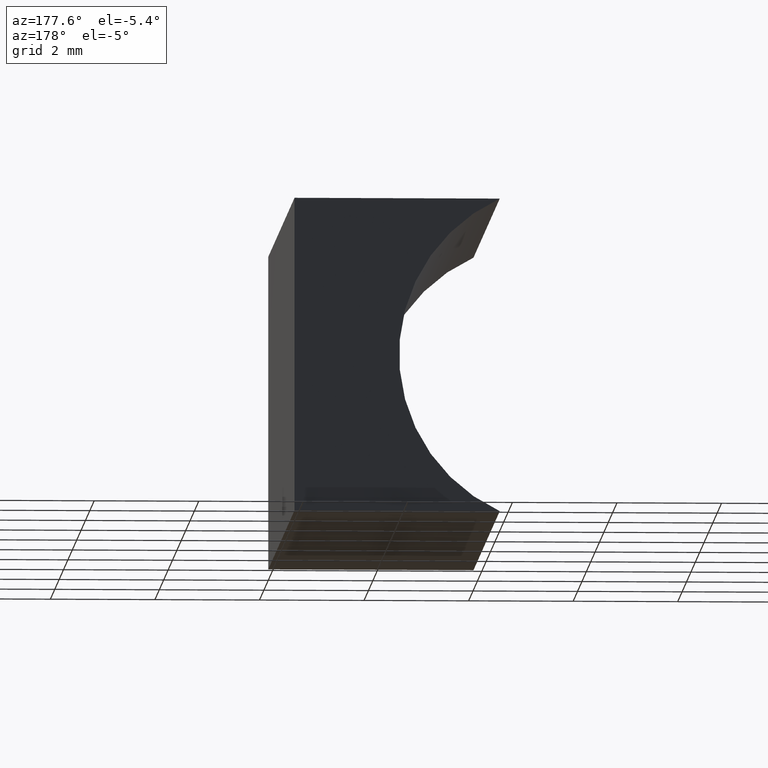
[diagram: clean part render]
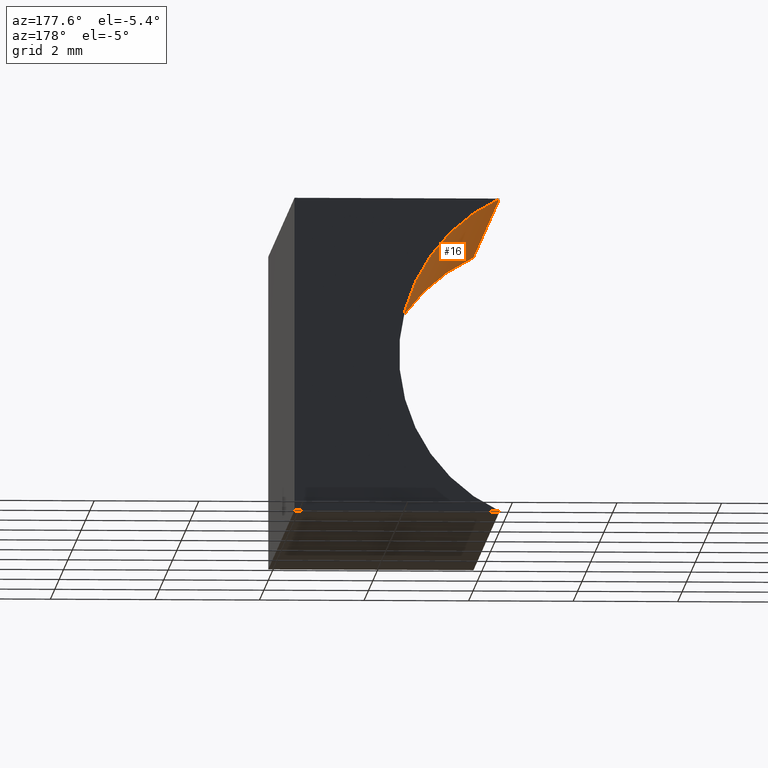
[diagram: same view with one face highlighted and labeled with its STEP entity id]
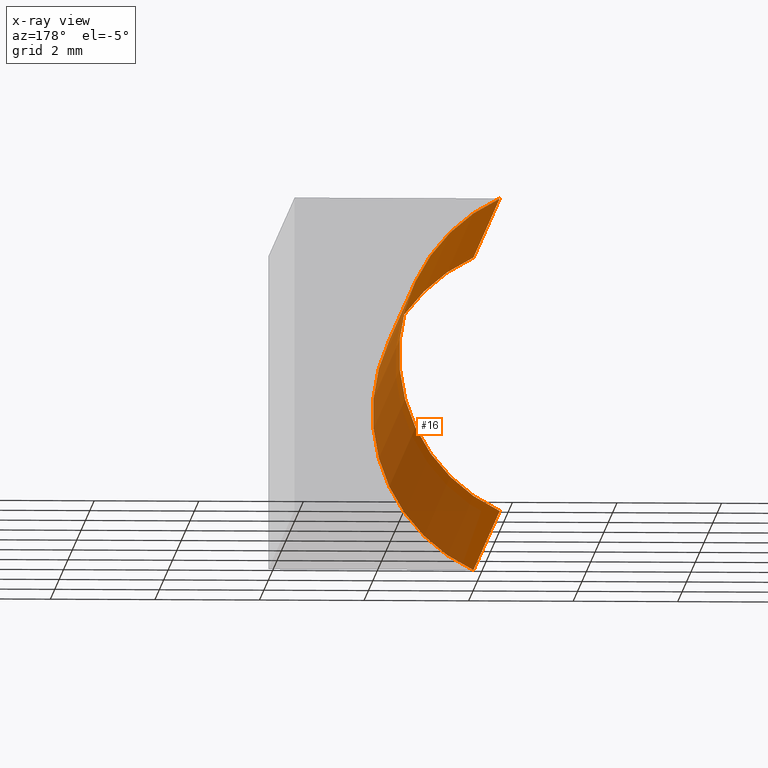
[diagram: x-ray of the same camera — body ghosted, the highlighted face saturated]
A machine part, auxiliary view. The second image highlights one B-rep face of the part: STEP entity #16.
The next image is the same camera in x-ray: the body ghosted, the highlighted face saturated — about 63% of this face is hidden behind the body in this view.
In plain terms, the highlighted cylindrical surface (partial cylindrical patch) has radius 3.3 mm, axis along (-0, -1, -0).
Its self-contained STEP definition (entity closure, byte-faithful):
#2 = CARTESIAN_POINT ( 'NONE',  ( -3.925227291513251800, 0.0000000000000000000, 5.999999999999998200 ) ) ;
#10 = DIRECTION ( 'NONE',  ( -0.0000000000000000000, -1.000000000000000000, -0.0000000000000000000 ) ) ;
#14 = CARTESIAN_POINT ( 'NONE',  ( -5.299999999999998900, 12.00000000000000000, 2.999999999999998200 ) ) ;
#15 = VERTEX_POINT ( 'NONE', #170 ) ;
#16 = ADVANCED_FACE ( 'NONE', ( #42 ), #137, .F. ) ;
#18 = AXIS2_PLACEMENT_3D ( 'NONE', #14, #144, #102 ) ;
#21 = VERTEX_POINT ( 'NONE', #2 ) ;
#29 = VERTEX_POINT ( 'NONE', #200 ) ;
#42 = FACE_OUTER_BOUND ( 'NONE', #196, .T. ) ;
#44 = DIRECTION ( 'NONE',  ( -0.0000000000000000000, -1.000000000000000000, -0.0000000000000000000 ) ) ;
#51 = CARTESIAN_POINT ( 'NONE',  ( -3.925227291513245600, 12.00000000000000000, 4.336808689942017700E-016 ) ) ;
#53 = EDGE_CURVE ( 'NONE', #61, #21, #109, .T. ) ;
#58 = CARTESIAN_POINT ( 'NONE',  ( -5.299999999999998900, 0.0000000000000000000, 2.999999999999998200 ) ) ;
#61 = VERTEX_POINT ( 'NONE', #202 ) ;
#63 = DIRECTION ( 'NONE',  ( -0.0000000000000000000, -1.000000000000000000, -0.0000000000000000000 ) ) ;
#77 = AXIS2_PLACEMENT_3D ( 'NONE', #58, #63, #134 ) ;
#82 = ORIENTED_EDGE ( 'NONE', *, *, #131, .F. ) ;
#91 = DIRECTION ( 'NONE',  ( 0.0000000000000000000, 0.0000000000000000000, 1.000000000000000000 ) ) ;
#95 = DIRECTION ( 'NONE',  ( -0.0000000000000000000, -1.000000000000000000, -0.0000000000000000000 ) ) ;
#98 = CARTESIAN_POINT ( 'NONE',  ( -5.299999999999998900, 12.00000000000000000, 2.999999999999998200 ) ) ;
#100 = CARTESIAN_POINT ( 'NONE',  ( -3.925227291513251800, 12.00000000000000000, 5.999999999999998200 ) ) ;
#102 = DIRECTION ( 'NONE',  ( 0.0000000000000000000, 0.0000000000000000000, -1.000000000000000000 ) ) ;
#109 = LINE ( 'NONE', #100, #173 ) ;
#110 = AXIS2_PLACEMENT_3D ( 'NONE', #98, #95, #91 ) ;
#113 = ORIENTED_EDGE ( 'NONE', *, *, #186, .T. ) ;
#114 = CIRCLE ( 'NONE', #77, 3.299999999999998000 ) ;
#118 = VECTOR ( 'NONE', #10, 1000.000000000000000 ) ;
#123 = LINE ( 'NONE', #51, #118 ) ;
#131 = EDGE_CURVE ( 'NONE', #15, #61, #152, .T. ) ;
#134 = DIRECTION ( 'NONE',  ( 0.0000000000000000000, 0.0000000000000000000, 1.000000000000000000 ) ) ;
#137 = CYLINDRICAL_SURFACE ( 'NONE', #18, 3.299999999999998500 ) ;
#144 = DIRECTION ( 'NONE',  ( -0.0000000000000000000, -1.000000000000000000, -0.0000000000000000000 ) ) ;
#148 = EDGE_CURVE ( 'NONE', #15, #29, #123, .T. ) ;
#152 = CIRCLE ( 'NONE', #110, 3.299999999999998000 ) ;
#158 = ORIENTED_EDGE ( 'NONE', *, *, #148, .T. ) ;
#170 = CARTESIAN_POINT ( 'NONE',  ( -3.925227291513245600, 12.00000000000000000, 4.336808689942017700E-016 ) ) ;
#173 = VECTOR ( 'NONE', #44, 1000.000000000000000 ) ;
#174 = ORIENTED_EDGE ( 'NONE', *, *, #53, .F. ) ;
#186 = EDGE_CURVE ( 'NONE', #29, #21, #114, .T. ) ;
#196 = EDGE_LOOP ( 'NONE', ( #113, #174, #82, #158 ) ) ;
#200 = CARTESIAN_POINT ( 'NONE',  ( -3.925227291513245600, 0.0000000000000000000, 4.336808689942017700E-016 ) ) ;
#202 = CARTESIAN_POINT ( 'NONE',  ( -3.925227291513251800, 12.00000000000000000, 5.999999999999998200 ) ) ;